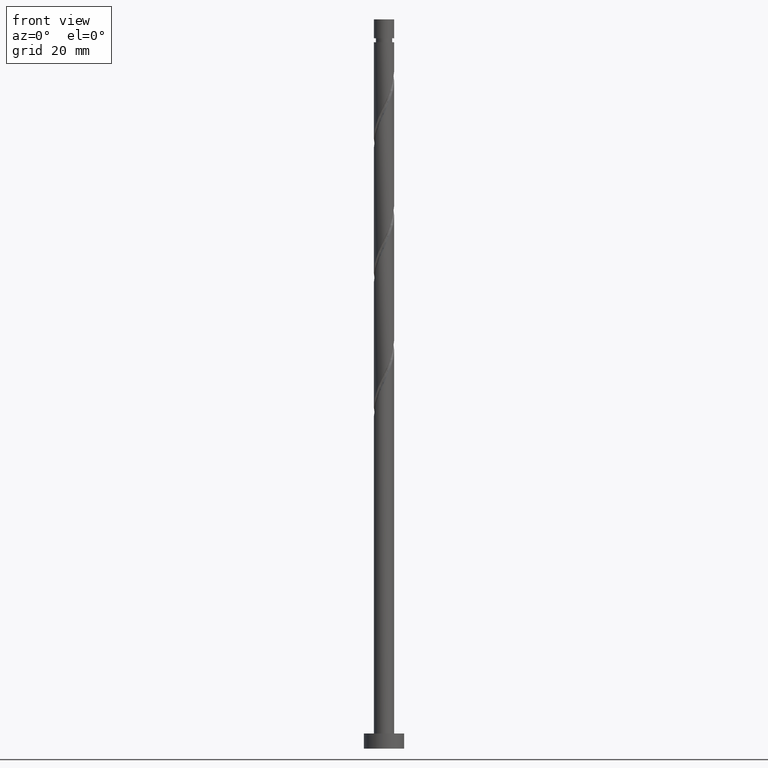
[diagram: clean part render]
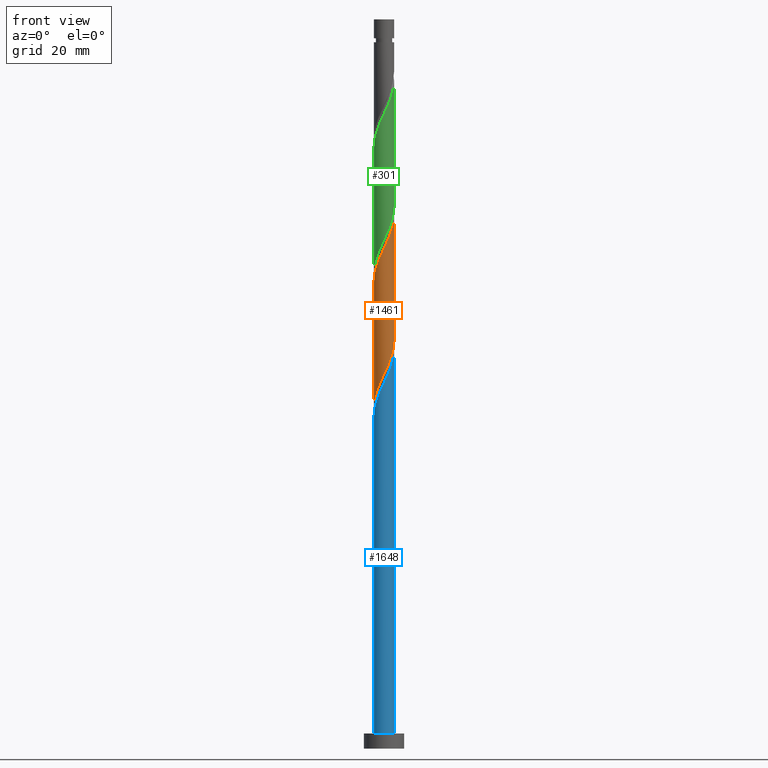
[diagram: same view with three faces highlighted in distinct colors, each labeled with its STEP entity id]
A machine part, front view with three faces highlighted in distinct colors.
Their STEP definitions:

[orange] entity #1461 — the highlighted cylindrical surface (edge-blend (fillet) strip) has radius 2 mm, axis along (-0, -0, -1).
#5 = CARTESIAN_POINT ( 'NONE',  ( 1.786663747202081876, -0.9436744384215538517, 78.85604992520248402 ) ) ;
#36 = CARTESIAN_POINT ( 'NONE',  ( 0.4568343776401056489, -1.968245701812300963, 75.21968628883884378 ) ) ;
#58 = CARTESIAN_POINT ( 'NONE',  ( 1.600603406160407083, -1.233189980288575294, 103.0984741676267475 ) ) ;
#102 = CARTESIAN_POINT ( 'NONE',  ( -1.999999999999999112, 2.146303770951738101E-15, 67.58429228329124783 ) ) ;
#144 = CARTESIAN_POINT ( 'NONE',  ( -1.394470680848406641, -1.433684595806965056, 70.97726204641459447 ) ) ;
#175 = CARTESIAN_POINT ( 'NONE',  ( 1.996690616564938958, -0.1150068768444775791, 80.67423174338432545 ) ) ;
#267 = CARTESIAN_POINT ( 'NONE',  ( 1.220637884402353324, -1.584311571365224047, 77.03786810702067100 ) ) ;
#276 = CARTESIAN_POINT ( 'NONE',  ( -1.999999999999999112, 2.146303770951738496E-15, 67.58429228329124783 ) ) ;
#285 = CARTESIAN_POINT ( 'NONE',  ( 0.9928482695149667414, -1.759812803970228101, 76.43180750096007614 ) ) ;
#306 = CARTESIAN_POINT ( 'NONE',  ( -0.1161895186125012913, -2.017223038501447796, 74.00756507671765405 ) ) ;
#310 = CARTESIAN_POINT ( 'NONE',  ( -2.000000000000002665, -0.05755105304765272684, 92.67414799607438169 ) ) ;
#395 = CARTESIAN_POINT ( 'NONE',  ( -1.600603406160405084, -1.233189980288572185, 70.37120144035398539 ) ) ;
#400 = CARTESIAN_POINT ( 'NONE',  ( -0.7248413235775378327, -1.864029252891267197, 97.64392871308126587 ) ) ;
#410 = CARTESIAN_POINT ( 'NONE',  ( -1.188337955536407309, -1.634179211325358372, 71.58332265247526038 ) ) ;
#439 = EDGE_CURVE ( 'NONE', #1154, #592, #658, .T. ) ;
#443 = CARTESIAN_POINT ( 'NONE',  ( 2.000000000000006661, -0.2290578547702314116, 105.3994233717182283 ) ) ;
#457 = DIRECTION ( 'NONE',  ( -0.000000000000000000, -0.000000000000000000, -1.000000000000000000 ) ) ;
#483 =( BOUNDED_CURVE ( )  B_SPLINE_CURVE ( 2, ( #549, #310, #563, #777, #808, #797, #531, #1301, #1058, #1320, #400, #666, #1187, #1562, #1605, #1616, #981, #570, #692, #58, #1084, #1469, #1600, #443, #852 ),
 .UNSPECIFIED., .F., .T. ) 
 B_SPLINE_CURVE_WITH_KNOTS ( ( 3, 2, 2, 2, 2, 2, 2, 2, 2, 2, 2, 2, 3 ),
 ( 0.3045252162417516062, 0.3068181818181817677, 0.3181818181818182323, 0.3295454545454545858, 0.3409090909090909394, 0.3522727272727272929, 0.3636363636363636465, 0.3750000000000000000, 0.3863636363636363535, 0.3977272727272727071, 0.4090909090909090606, 0.4204545454545454142, 0.4295252162417518838 ),
 .UNSPECIFIED. ) 
 CURVE ( )  GEOMETRIC_REPRESENTATION_ITEM ( )  RATIONAL_B_SPLINE_CURVE ( ( 0.9061101570135665639, 0.9072237824201486722, 0.9090909090909258250, 0.8998376744372282854, 0.9090909090909258250, 0.8998376744372282854, 0.9090909090909258250, 0.8998376744372282854, 0.9090909090909258250, 0.8998376744372282854, 0.9090909090909258250, 0.8998376744372282854, 0.9090909090909258250, 0.8998376744372282854, 0.9090909090909258250, 0.8998376744372282854, 0.9090909090909258250, 0.8998376744372282854, 0.9090909090909258250, 0.8998376744372282854, 0.9090909090909258250, 0.8998376744372282854, 0.9090909090909258250, 0.9017048011080052161, 0.9061101570135667860 ) ) 
 REPRESENTATION_ITEM ( '' )  );
#526 = CARTESIAN_POINT ( 'NONE',  ( 0.7248413235775359453, -1.864029252891264754, 75.82574689489945285 ) ) ;
#531 = CARTESIAN_POINT ( 'NONE',  ( -1.617545623245914665, -1.176242388590888366, 95.21968628883884378 ) ) ;
#537 = CARTESIAN_POINT ( 'NONE',  ( 1.448427499289741682, -1.408810338760219771, 77.64392871308128008 ) ) ;
#547 = VECTOR ( 'NONE', #457, 1000.000000000000000 ) ;
#549 = CARTESIAN_POINT ( 'NONE',  ( -2.000000000000003553, -1.570466173867113261E-15, 92.55204999135617072 ) ) ;
#556 = CARTESIAN_POINT ( 'NONE',  ( -0.9340691933046016970, -1.768478086411954475, 72.18938325853581262 ) ) ;
#563 = CARTESIAN_POINT ( 'NONE',  ( -1.996690616564942955, -0.1150068768444769268, 92.79544386459643590 ) ) ;
#570 = CARTESIAN_POINT ( 'NONE',  ( 1.188337955536409751, -1.634179211325361258, 101.8863529555055294 ) ) ;
#592 = VERTEX_POINT ( 'NONE', #1145 ) ;
#627 = CYLINDRICAL_SURFACE ( 'NONE', #1660, 2.000000000000000000 ) ;
#652 = DIRECTION ( 'NONE',  ( -1.000000000000000000, 0.000000000000000000, 0.000000000000000000 ) ) ;
#658 = LINE ( 'NONE', #1176, #1160 ) ;
#666 = CARTESIAN_POINT ( 'NONE',  ( -0.4568343776401063705, -1.968245701812304516, 98.24998931914188915 ) ) ;
#670 = CARTESIAN_POINT ( 'NONE',  ( 1.999999999999999556, 3.036234602809776601E-15, 80.91762561662460485 ) ) ;
#692 = CARTESIAN_POINT ( 'NONE',  ( 1.394470680848408417, -1.433684595806968387, 102.4924135615661385 ) ) ;
#751 = FACE_OUTER_BOUND ( 'NONE', #1618, .T. ) ;
#767 = EDGE_CURVE ( 'NONE', #994, #953, #1104, .T. ) ;
#777 = CARTESIAN_POINT ( 'NONE',  ( -1.980155124014553847, -0.4020876473299556109, 93.40150447065703077 ) ) ;
#784 = CARTESIAN_POINT ( 'NONE',  ( 1.617545623245911335, -1.176242388590886589, 78.24998931914186073 ) ) ;
#797 = CARTESIAN_POINT ( 'NONE',  ( -1.786663747202084984, -0.9436744384215550729, 94.61362568277823470 ) ) ;
#808 = CARTESIAN_POINT ( 'NONE',  ( -1.883409435608319527, -0.6728810428757550088, 94.00756507671763984 ) ) ;
#814 = DIRECTION ( 'NONE',  ( -0.000000000000000000, -0.000000000000000000, -1.000000000000000000 ) ) ;
#852 = CARTESIAN_POINT ( 'NONE',  ( 2.000000000000003553, 1.450811608239142856E-15, 105.8853833246894993 ) ) ;
#920 = CARTESIAN_POINT ( 'NONE',  ( -1.883197487972271933, -0.7322950311120137723, 69.15908022823278145 ) ) ;
#939 = CARTESIAN_POINT ( 'NONE',  ( 0.1703224295138016653, -1.992734370156873824, 74.61362568277824892 ) ) ;
#953 = VERTEX_POINT ( 'NONE', #102 ) ;
#974 = ORIENTED_EDGE ( 'NONE', *, *, #767, .T. ) ;
#981 = CARTESIAN_POINT ( 'NONE',  ( 0.9340691933046026962, -1.768478086411958028, 101.2802923494449203 ) ) ;
#994 = VERTEX_POINT ( 'NONE', #1174 ) ;
#1045 = CARTESIAN_POINT ( 'NONE',  ( -0.3979949748426486189, -1.959999999999999520, 73.40150447065701655 ) ) ;
#1055 = CARTESIAN_POINT ( 'NONE',  ( -1.948211798543799889, -0.4521844623765072790, 68.55301962217218659 ) ) ;
#1058 = CARTESIAN_POINT ( 'NONE',  ( -1.220637884402356210, -1.584311571365226046, 96.43180750096009035 ) ) ;
#1060 = DIRECTION ( 'NONE',  ( -0.000000000000000000, -0.000000000000000000, -1.000000000000000000 ) ) ;
#1083 = EDGE_CURVE ( 'NONE', #994, #1154, #483, .T. ) ;
#1084 = CARTESIAN_POINT ( 'NONE',  ( 1.741900447066340618, -0.9827425057002954212, 103.7045347736873424 ) ) ;
#1104 = LINE ( 'NONE', #1612, #547 ) ;
#1145 = CARTESIAN_POINT ( 'NONE',  ( 1.999999999999999556, 3.036234602809776206E-15, 80.91762561662460485 ) ) ;
#1154 = VERTEX_POINT ( 'NONE', #1623 ) ;
#1160 = VECTOR ( 'NONE', #1060, 1000.000000000000000 ) ;
#1169 = CARTESIAN_POINT ( 'NONE',  ( 1.883409435608315752, -0.6728810428757546758, 79.46211053126310730 ) ) ;
#1174 = CARTESIAN_POINT ( 'NONE',  ( -2.000000000000003553, -1.570466173867113261E-15, 92.55204999135617072 ) ) ;
#1176 = CARTESIAN_POINT ( 'NONE',  ( 2.000000000000000000, 2.449293598294706414E-16, 144.5999999999999943 ) ) ;
#1183 =( BOUNDED_CURVE ( )  B_SPLINE_CURVE ( 2, ( #670, #1201, #175, #1424, #1169, #5, #784, #537, #267, #285, #526, #36, #939, #306, #1045, #1549, #556, #410, #144, #395, #1191, #920, #1055, #1434, #276 ),
 .UNSPECIFIED., .F., .T. ) 
 B_SPLINE_CURVE_WITH_KNOTS ( ( 3, 2, 2, 2, 2, 2, 2, 2, 2, 2, 2, 2, 3 ),
 ( 0.8045252162417509956, 0.8068181818181817677, 0.8181818181818182323, 0.8295454545454545858, 0.8409090909090909394, 0.8522727272727272929, 0.8636363636363636465, 0.8750000000000000000, 0.8863636363636363535, 0.8977272727272727071, 0.9090909090909090606, 0.9204545454545454142, 0.9295252162417514397 ),
 .UNSPECIFIED. ) 
 CURVE ( )  GEOMETRIC_REPRESENTATION_ITEM ( )  RATIONAL_B_SPLINE_CURVE ( ( 0.9061101570135590144, 0.9072237824201411227, 0.9090909090909189416, 0.8998376744372211800, 0.9090909090909189416, 0.8998376744372211800, 0.9090909090909189416, 0.8998376744372211800, 0.9090909090909189416, 0.8998376744372211800, 0.9090909090909189416, 0.8998376744372211800, 0.9090909090909189416, 0.8998376744372211800, 0.9090909090909189416, 0.8998376744372211800, 0.9090909090909189416, 0.8998376744372211800, 0.9090909090909189416, 0.8998376744372211800, 0.9090909090909189416, 0.8998376744372211800, 0.9090909090909189416, 0.9017048011079985548, 0.9061101570135594585 ) ) 
 REPRESENTATION_ITEM ( '' )  );
#1187 = CARTESIAN_POINT ( 'NONE',  ( -0.1703224295138029143, -1.992734370156877821, 98.85604992520249823 ) ) ;
#1191 = CARTESIAN_POINT ( 'NONE',  ( -1.741900447066337954, -0.9827425057002928677, 69.76514083429339053 ) ) ;
#1201 = CARTESIAN_POINT ( 'NONE',  ( 2.000000000000000000, -0.05755105304763822455, 80.79552761190637966 ) ) ;
#1285 = ORIENTED_EDGE ( 'NONE', *, *, #1083, .F. ) ;
#1301 = CARTESIAN_POINT ( 'NONE',  ( -1.448427499289743903, -1.408810338760221548, 95.82574689489946707 ) ) ;
#1320 = CARTESIAN_POINT ( 'NONE',  ( -0.9928482695149690729, -1.759812803970230322, 97.03786810702067100 ) ) ;
#1352 = ORIENTED_EDGE ( 'NONE', *, *, #1481, .F. ) ;
#1395 = CARTESIAN_POINT ( 'NONE',  ( 0.000000000000000000, 0.000000000000000000, 144.5999999999999943 ) ) ;
#1424 = CARTESIAN_POINT ( 'NONE',  ( 1.980155124014550738, -0.4020876473299556664, 80.06817113732370217 ) ) ;
#1434 = CARTESIAN_POINT ( 'NONE',  ( -2.000000000000000444, -0.2290578547702416257, 68.07025223626254729 ) ) ;
#1461 = ADVANCED_FACE ( 'NONE', ( #751 ), #627, .T. ) ;
#1469 = CARTESIAN_POINT ( 'NONE',  ( 1.883197487972274820, -0.7322950311120147715, 104.3105953797479373 ) ) ;
#1479 = ORIENTED_EDGE ( 'NONE', *, *, #439, .F. ) ;
#1481 = EDGE_CURVE ( 'NONE', #592, #953, #1183, .T. ) ;
#1549 = CARTESIAN_POINT ( 'NONE',  ( -0.6798004310727961963, -1.902776961498551245, 72.79544386459642169 ) ) ;
#1562 = CARTESIAN_POINT ( 'NONE',  ( 0.1161895186125005835, -2.017223038501450905, 99.46211053126307888 ) ) ;
#1600 = CARTESIAN_POINT ( 'NONE',  ( 1.948211798543803663, -0.4521844623765085558, 104.9166559858085890 ) ) ;
#1605 = CARTESIAN_POINT ( 'NONE',  ( 0.3979949748426485634, -1.960000000000003073, 100.0681711373236880 ) ) ;
#1612 = CARTESIAN_POINT ( 'NONE',  ( -2.000000000000000000, 0.000000000000000000, 144.5999999999999943 ) ) ;
#1616 = CARTESIAN_POINT ( 'NONE',  ( 0.6798004310727965294, -1.902776961498555242, 100.6742317433843112 ) ) ;
#1618 = EDGE_LOOP ( 'NONE', ( #1479, #1285, #974, #1352 ) ) ;
#1623 = CARTESIAN_POINT ( 'NONE',  ( 2.000000000000003553, 1.450811608239142856E-15, 105.8853833246894993 ) ) ;
#1660 = AXIS2_PLACEMENT_3D ( 'NONE', #1395, #814, #652 ) ;

[blue] entity #1648 — the highlighted cylindrical surface (edge-blend (fillet) strip) has radius 2 mm, axis along (-0, -0, -1).
#12 = DIRECTION ( 'NONE',  ( -0.000000000000000000, -0.000000000000000000, -1.000000000000000000 ) ) ;
#45 = CARTESIAN_POINT ( 'NONE',  ( -1.980155124014553847, -0.4020876473299556109, 66.73483780399034515 ) ) ;
#62 = ORIENTED_EDGE ( 'NONE', *, *, #882, .T. ) ;
#63 = CARTESIAN_POINT ( 'NONE',  ( -0.1703224295138029143, -1.992734370156877821, 72.18938325853582683 ) ) ;
#86 = DIRECTION ( 'NONE',  ( -1.000000000000000000, 0.000000000000000000, 0.000000000000000000 ) ) ;
#208 = VERTEX_POINT ( 'NONE', #605 ) ;
#212 = CARTESIAN_POINT ( 'NONE',  ( -2.000000000000003553, -1.570466173867113261E-15, 65.88538332468947090 ) ) ;
#245 = CARTESIAN_POINT ( 'NONE',  ( -2.000000000000003109, -0.05755105304764770308, 66.00748132940768187 ) ) ;
#250 = CARTESIAN_POINT ( 'NONE',  ( 2.000000000000003553, 1.450811608239142856E-15, 79.21871665802281370 ) ) ;
#254 = CIRCLE ( 'NONE', #1371, 2.000000000000000000 ) ;
#292 = LINE ( 'NONE', #1178, #783 ) ;
#322 = CARTESIAN_POINT ( 'NONE',  ( 1.188337955536409751, -1.634179211325361258, 75.21968628883884378 ) ) ;
#335 = DIRECTION ( 'NONE',  ( 1.000000000000000000, 0.000000000000000000, 0.000000000000000000 ) ) ;
#367 = VERTEX_POINT ( 'NONE', #250 ) ;
#420 = CARTESIAN_POINT ( 'NONE',  ( -0.4568343776401063705, -1.968245701812304516, 71.58332265247520354 ) ) ;
#435 = CARTESIAN_POINT ( 'NONE',  ( -1.220637884402356210, -1.584311571365226046, 69.76514083429341895 ) ) ;
#438 = CARTESIAN_POINT ( 'NONE',  ( -0.7248413235775378327, -1.864029252891267197, 70.97726204641459447 ) ) ;
#462 = ORIENTED_EDGE ( 'NONE', *, *, #916, .F. ) ;
#555 = CARTESIAN_POINT ( 'NONE',  ( 1.394470680848408417, -1.433684595806968387, 75.82574689489946707 ) ) ;
#564 = CARTESIAN_POINT ( 'NONE',  ( -1.883409435608319527, -0.6728810428757550088, 67.34089841005098265 ) ) ;
#605 = CARTESIAN_POINT ( 'NONE',  ( 2.000000000000000000, 2.449293598294706414E-16, 3.000000000000000000 ) ) ;
#610 = CARTESIAN_POINT ( 'NONE',  ( -1.786663747202084984, -0.9436744384215550729, 67.94695901611157751 ) ) ;
#707 = VERTEX_POINT ( 'NONE', #1269 ) ;
#735 = CARTESIAN_POINT ( 'NONE',  ( -1.996690616564942955, -0.1150068768444769268, 66.12877719792975029 ) ) ;
#736 = EDGE_LOOP ( 'NONE', ( #861, #462, #1240, #62 ) ) ;
#783 = VECTOR ( 'NONE', #12, 1000.000000000000000 ) ;
#818 = EDGE_CURVE ( 'NONE', #707, #869, #1362, .T. ) ;
#824 = CARTESIAN_POINT ( 'NONE',  ( -1.448427499289743903, -1.408810338760221548, 69.15908022823279566 ) ) ;
#838 = CARTESIAN_POINT ( 'NONE',  ( 1.741900447066340618, -0.9827425057002954212, 77.03786810702069943 ) ) ;
#848 = CARTESIAN_POINT ( 'NONE',  ( 2.000000000000003997, -0.2290578547702424583, 78.73275670505147161 ) ) ;
#861 = ORIENTED_EDGE ( 'NONE', *, *, #1195, .F. ) ;
#869 = VERTEX_POINT ( 'NONE', #1234 ) ;
#882 = EDGE_CURVE ( 'NONE', #869, #208, #254, .T. ) ;
#916 = EDGE_CURVE ( 'NONE', #707, #367, #1511, .T. ) ;
#958 = CARTESIAN_POINT ( 'NONE',  ( -0.9928482695149690729, -1.759812803970230322, 70.37120144035398539 ) ) ;
#979 = CYLINDRICAL_SURFACE ( 'NONE', #1662, 2.000000000000000000 ) ;
#1088 = FACE_OUTER_BOUND ( 'NONE', #736, .T. ) ;
#1093 = CARTESIAN_POINT ( 'NONE',  ( 0.3979949748426485634, -1.960000000000003073, 73.40150447065705919 ) ) ;
#1178 = CARTESIAN_POINT ( 'NONE',  ( 2.000000000000000000, 2.449293598294706414E-16, 144.5999999999999943 ) ) ;
#1195 = EDGE_CURVE ( 'NONE', #367, #208, #292, .T. ) ;
#1219 = CARTESIAN_POINT ( 'NONE',  ( 0.9340691933046026962, -1.768478086411958028, 74.61362568277824892 ) ) ;
#1234 = CARTESIAN_POINT ( 'NONE',  ( -2.000000000000000000, 0.000000000000000000, 3.000000000000000000 ) ) ;
#1238 = CARTESIAN_POINT ( 'NONE',  ( 0.000000000000000000, 0.000000000000000000, 3.000000000000000000 ) ) ;
#1240 = ORIENTED_EDGE ( 'NONE', *, *, #818, .T. ) ;
#1246 = DIRECTION ( 'NONE',  ( -0.000000000000000000, -0.000000000000000000, -1.000000000000000000 ) ) ;
#1269 = CARTESIAN_POINT ( 'NONE',  ( -2.000000000000003553, -1.570466173867113261E-15, 65.88538332468947090 ) ) ;
#1339 = CARTESIAN_POINT ( 'NONE',  ( 0.1161895186125005835, -2.017223038501450905, 72.79544386459640748 ) ) ;
#1355 = CARTESIAN_POINT ( 'NONE',  ( 0.000000000000000000, 0.000000000000000000, 144.5999999999999943 ) ) ;
#1362 = LINE ( 'NONE', #1541, #1456 ) ;
#1371 = AXIS2_PLACEMENT_3D ( 'NONE', #1238, #1390, #335 ) ;
#1390 = DIRECTION ( 'NONE',  ( 0.000000000000000000, 0.000000000000000000, 1.000000000000000000 ) ) ;
#1396 = DIRECTION ( 'NONE',  ( -0.000000000000000000, -0.000000000000000000, -1.000000000000000000 ) ) ;
#1456 = VECTOR ( 'NONE', #1396, 1000.000000000000000 ) ;
#1466 = CARTESIAN_POINT ( 'NONE',  ( 0.6798004310727965294, -1.902776961498555242, 74.00756507671762563 ) ) ;
#1487 = CARTESIAN_POINT ( 'NONE',  ( 1.948211798543803663, -0.4521844623765085558, 78.24998931914188915 ) ) ;
#1498 = CARTESIAN_POINT ( 'NONE',  ( 1.600603406160407083, -1.233189980288575294, 76.43180750096006193 ) ) ;
#1511 =( BOUNDED_CURVE ( )  B_SPLINE_CURVE ( 2, ( #212, #245, #735, #45, #564, #610, #1588, #824, #435, #958, #438, #420, #63, #1339, #1093, #1466, #1219, #322, #555, #1498, #838, #1610, #1487, #848, #1663 ),
 .UNSPECIFIED., .F., .T. ) 
 B_SPLINE_CURVE_WITH_KNOTS ( ( 3, 2, 2, 2, 2, 2, 2, 2, 2, 2, 2, 2, 3 ),
 ( 0.05452521624175140497, 0.05681818181818176772, 0.06818181818181823228, 0.07954545454545458583, 0.09090909090909093937, 0.1022727272727272929, 0.1136363636363636465, 0.1250000000000000000, 0.1363636363636363535, 0.1477272727272727071, 0.1590909090909090606, 0.1704545454545454142, 0.1795252162417514397 ),
 .UNSPECIFIED. ) 
 CURVE ( )  GEOMETRIC_REPRESENTATION_ITEM ( )  RATIONAL_B_SPLINE_CURVE ( ( 0.9061101570135663419, 0.9072237824201484502, 0.9090909090909258250, 0.8998376744372282854, 0.9090909090909258250, 0.8998376744372282854, 0.9090909090909258250, 0.8998376744372282854, 0.9090909090909258250, 0.8998376744372282854, 0.9090909090909258250, 0.8998376744372282854, 0.9090909090909258250, 0.8998376744372282854, 0.9090909090909258250, 0.8998376744372282854, 0.9090909090909258250, 0.8998376744372282854, 0.9090909090909258250, 0.8998376744372282854, 0.9090909090909258250, 0.8998376744372282854, 0.9090909090909258250, 0.9017048011080055492, 0.9061101570135663419 ) ) 
 REPRESENTATION_ITEM ( '' )  );
#1541 = CARTESIAN_POINT ( 'NONE',  ( -2.000000000000000000, 0.000000000000000000, 144.5999999999999943 ) ) ;
#1588 = CARTESIAN_POINT ( 'NONE',  ( -1.617545623245914665, -1.176242388590888366, 68.55301962217218659 ) ) ;
#1610 = CARTESIAN_POINT ( 'NONE',  ( 1.883197487972274820, -0.7322950311120147715, 77.64392871308126587 ) ) ;
#1648 = ADVANCED_FACE ( 'NONE', ( #1088 ), #979, .T. ) ;
#1662 = AXIS2_PLACEMENT_3D ( 'NONE', #1355, #1246, #86 ) ;
#1663 = CARTESIAN_POINT ( 'NONE',  ( 2.000000000000003553, 1.450811608239142856E-15, 79.21871665802281370 ) ) ;

[green] entity #301 — the highlighted cylindrical surface (edge-blend (fillet) strip) has radius 2 mm, axis along (-0, -0, -1).
#4 = CARTESIAN_POINT ( 'NONE',  ( 0.1161895186125005835, -2.017223038501450905, 126.1287771979297787 ) ) ;
#13 = CARTESIAN_POINT ( 'NONE',  ( 2.000000000000003109, -0.2290578547702473711, 132.0660900383848286 ) ) ;
#60 = CARTESIAN_POINT ( 'NONE',  ( 1.617545623245911335, -1.176242388590886589, 104.9166559858085321 ) ) ;
#68 = ORIENTED_EDGE ( 'NONE', *, *, #1186, .T. ) ;
#98 = CARTESIAN_POINT ( 'NONE',  ( -0.9340691933046016970, -1.768478086411954475, 98.85604992520249823 ) ) ;
#132 =( BOUNDED_CURVE ( )  B_SPLINE_CURVE ( 2, ( #587, #1462, #315, #1085, #440, #828, #60, #1137, #1004, #337, #601, #747, #1531, #1642, #1268, #1502, #98, #622, #345, #886, #495, #1017, #866, #1374, #227 ),
 .UNSPECIFIED., .F., .T. ) 
 B_SPLINE_CURVE_WITH_KNOTS ( ( 3, 2, 2, 2, 2, 2, 2, 2, 2, 2, 2, 2, 3 ),
 ( 0.5545252162417511066, 0.5568181818181817677, 0.5681818181818182323, 0.5795454545454545858, 0.5909090909090909394, 0.6022727272727272929, 0.6136363636363636465, 0.6250000000000000000, 0.6363636363636363535, 0.6477272727272727071, 0.6590909090909090606, 0.6704545454545454142, 0.6795252162417514397 ),
 .UNSPECIFIED. ) 
 CURVE ( )  GEOMETRIC_REPRESENTATION_ITEM ( )  RATIONAL_B_SPLINE_CURVE ( ( 0.9061101570135590144, 0.9072237824201412337, 0.9090909090909189416, 0.8998376744372211800, 0.9090909090909189416, 0.8998376744372211800, 0.9090909090909189416, 0.8998376744372211800, 0.9090909090909189416, 0.8998376744372211800, 0.9090909090909189416, 0.8998376744372211800, 0.9090909090909189416, 0.8998376744372211800, 0.9090909090909189416, 0.8998376744372211800, 0.9090909090909189416, 0.8998376744372211800, 0.9090909090909189416, 0.8998376744372211800, 0.9090909090909189416, 0.8998376744372211800, 0.9090909090909189416, 0.9017048011079985548, 0.9061101570135594585 ) ) 
 REPRESENTATION_ITEM ( '' )  );
#134 = CARTESIAN_POINT ( 'NONE',  ( -0.4568343776401063705, -1.968245701812304516, 124.9166559858085748 ) ) ;
#163 = CARTESIAN_POINT ( 'NONE',  ( 0.9340691933046026962, -1.768478086411958028, 127.9469590161116059 ) ) ;
#173 = DIRECTION ( 'NONE',  ( -0.000000000000000000, -0.000000000000000000, -1.000000000000000000 ) ) ;
#205 = CARTESIAN_POINT ( 'NONE',  ( -2.000000000000003553, 1.226459297686698274E-15, 119.2187166580228279 ) ) ;
#219 = LINE ( 'NONE', #626, #899 ) ;
#227 = CARTESIAN_POINT ( 'NONE',  ( -1.999999999999999112, 2.146303770951738496E-15, 94.25095894995790502 ) ) ;
#258 = CARTESIAN_POINT ( 'NONE',  ( -1.883409435608319527, -0.6728810428757550088, 120.6742317433843112 ) ) ;
#284 = CARTESIAN_POINT ( 'NONE',  ( -1.448427499289743903, -1.408810338760221548, 122.4924135615661243 ) ) ;
#293 = CARTESIAN_POINT ( 'NONE',  ( 0.6798004310727965294, -1.902776961498555242, 127.3408984100509684 ) ) ;
#301 = ADVANCED_FACE ( 'NONE', ( #1533 ), #1130, .T. ) ;
#315 = CARTESIAN_POINT ( 'NONE',  ( 1.996690616564938958, -0.1150068768444775791, 107.3408984100509826 ) ) ;
#337 = CARTESIAN_POINT ( 'NONE',  ( 0.9928482695149667414, -1.759812803970228101, 103.0984741676267049 ) ) ;
#339 = EDGE_LOOP ( 'NONE', ( #964, #454, #68, #1121 ) ) ;
#345 = CARTESIAN_POINT ( 'NONE',  ( -1.394470680848406641, -1.433684595806965056, 97.64392871308128008 ) ) ;
#359 = DIRECTION ( 'NONE',  ( -0.000000000000000000, -0.000000000000000000, -1.000000000000000000 ) ) ;
#378 = CARTESIAN_POINT ( 'NONE',  ( -1.786663747202084984, -0.9436744384215550729, 121.2802923494449203 ) ) ;
#440 = CARTESIAN_POINT ( 'NONE',  ( 1.883409435608315752, -0.6728810428757546758, 106.1287771979297503 ) ) ;
#454 = ORIENTED_EDGE ( 'NONE', *, *, #611, .F. ) ;
#495 = CARTESIAN_POINT ( 'NONE',  ( -1.741900447066337954, -0.9827425057002928677, 96.43180750096003351 ) ) ;
#508 = EDGE_CURVE ( 'NONE', #1129, #1372, #132, .T. ) ;
#525 = CARTESIAN_POINT ( 'NONE',  ( 1.188337955536409751, -1.634179211325361258, 128.5530196221722008 ) ) ;
#536 = CARTESIAN_POINT ( 'NONE',  ( 2.000000000000003553, 1.450811608239142856E-15, 132.5520499913561707 ) ) ;
#554 = CARTESIAN_POINT ( 'NONE',  ( 0.3979949748426485634, -1.960000000000003073, 126.7348378039903594 ) ) ;
#587 = CARTESIAN_POINT ( 'NONE',  ( 1.999999999999999556, 3.036234602809776601E-15, 107.5842922832912905 ) ) ;
#601 = CARTESIAN_POINT ( 'NONE',  ( 0.7248413235775359453, -1.864029252891264754, 102.4924135615661243 ) ) ;
#611 = EDGE_CURVE ( 'NONE', #1523, #1243, #1630, .T. ) ;
#622 = CARTESIAN_POINT ( 'NONE',  ( -1.188337955536407309, -1.634179211325358372, 98.24998931914188915 ) ) ;
#623 = VECTOR ( 'NONE', #173, 1000.000000000000000 ) ;
#626 = CARTESIAN_POINT ( 'NONE',  ( 2.000000000000000000, 2.449293598294706414E-16, 144.5999999999999943 ) ) ;
#747 = CARTESIAN_POINT ( 'NONE',  ( 0.4568343776401056489, -1.968245701812300963, 101.8863529555055152 ) ) ;
#766 = CARTESIAN_POINT ( 'NONE',  ( -1.617545623245914665, -1.176242388590888366, 121.8863529555055436 ) ) ;
#769 = CARTESIAN_POINT ( 'NONE',  ( 0.000000000000000000, 0.000000000000000000, 144.5999999999999943 ) ) ;
#780 = LINE ( 'NONE', #1190, #623 ) ;
#802 = CARTESIAN_POINT ( 'NONE',  ( 1.600603406160407083, -1.233189980288575294, 129.7651408342933905 ) ) ;
#828 = CARTESIAN_POINT ( 'NONE',  ( 1.786663747202081876, -0.9436744384215538517, 105.5227165918691696 ) ) ;
#862 = CARTESIAN_POINT ( 'NONE',  ( 1.999999999999999556, 3.036234602809776206E-15, 107.5842922832912905 ) ) ;
#866 = CARTESIAN_POINT ( 'NONE',  ( -1.948211798543799889, -0.4521844623765072790, 95.21968628883887220 ) ) ;
#872 = CARTESIAN_POINT ( 'NONE',  ( -1.999999999999999112, 2.146303770951738101E-15, 94.25095894995790502 ) ) ;
#886 = CARTESIAN_POINT ( 'NONE',  ( -1.600603406160405084, -1.233189980288572185, 97.03786810702068522 ) ) ;
#898 = CARTESIAN_POINT ( 'NONE',  ( -2.000000000000003553, -0.05755105304764356056, 119.3408146627410531 ) ) ;
#899 = VECTOR ( 'NONE', #1111, 1000.000000000000000 ) ;
#919 = CARTESIAN_POINT ( 'NONE',  ( 1.883197487972274820, -0.7322950311120147715, 130.9772620464146087 ) ) ;
#924 = EDGE_CURVE ( 'NONE', #1243, #1129, #219, .T. ) ;
#937 = CARTESIAN_POINT ( 'NONE',  ( -0.7248413235775378327, -1.864029252891267197, 124.3105953797479657 ) ) ;
#964 = ORIENTED_EDGE ( 'NONE', *, *, #924, .F. ) ;
#1004 = CARTESIAN_POINT ( 'NONE',  ( 1.220637884402353324, -1.584311571365224047, 103.7045347736873424 ) ) ;
#1017 = CARTESIAN_POINT ( 'NONE',  ( -1.883197487972271933, -0.7322950311120137723, 95.82574689489946707 ) ) ;
#1044 = CARTESIAN_POINT ( 'NONE',  ( 1.394470680848408417, -1.433684595806968387, 129.1590802282327957 ) ) ;
#1085 = CARTESIAN_POINT ( 'NONE',  ( 1.980155124014550738, -0.4020876473299556664, 106.7348378039903878 ) ) ;
#1111 = DIRECTION ( 'NONE',  ( -0.000000000000000000, -0.000000000000000000, -1.000000000000000000 ) ) ;
#1121 = ORIENTED_EDGE ( 'NONE', *, *, #508, .F. ) ;
#1129 = VERTEX_POINT ( 'NONE', #862 ) ;
#1130 = CYLINDRICAL_SURFACE ( 'NONE', #1220, 2.000000000000000000 ) ;
#1137 = CARTESIAN_POINT ( 'NONE',  ( 1.448427499289741682, -1.408810338760219771, 104.3105953797479231 ) ) ;
#1166 = CARTESIAN_POINT ( 'NONE',  ( -0.1703224295138029143, -1.992734370156877821, 125.5227165918691128 ) ) ;
#1179 = CARTESIAN_POINT ( 'NONE',  ( 1.948211798543803663, -0.4521844623765085558, 131.5833226524752035 ) ) ;
#1186 = EDGE_CURVE ( 'NONE', #1523, #1372, #780, .T. ) ;
#1190 = CARTESIAN_POINT ( 'NONE',  ( -2.000000000000000000, 0.000000000000000000, 144.5999999999999943 ) ) ;
#1220 = AXIS2_PLACEMENT_3D ( 'NONE', #769, #359, #1288 ) ;
#1243 = VERTEX_POINT ( 'NONE', #1406 ) ;
#1268 = CARTESIAN_POINT ( 'NONE',  ( -0.3979949748426486189, -1.959999999999999520, 100.0681711373236595 ) ) ;
#1286 = CARTESIAN_POINT ( 'NONE',  ( -1.980155124014553847, -0.4020876473299556109, 120.0681711373237022 ) ) ;
#1288 = DIRECTION ( 'NONE',  ( -1.000000000000000000, 0.000000000000000000, 0.000000000000000000 ) ) ;
#1372 = VERTEX_POINT ( 'NONE', #872 ) ;
#1374 = CARTESIAN_POINT ( 'NONE',  ( -2.000000000000000444, -0.2290578547702416257, 94.73691890292921869 ) ) ;
#1402 = CARTESIAN_POINT ( 'NONE',  ( -1.996690616564942955, -0.1150068768444769268, 119.4621105312631073 ) ) ;
#1406 = CARTESIAN_POINT ( 'NONE',  ( 2.000000000000003553, 1.450811608239142856E-15, 132.5520499913561707 ) ) ;
#1415 = CARTESIAN_POINT ( 'NONE',  ( -0.9928482695149690729, -1.759812803970230322, 123.7045347736873424 ) ) ;
#1423 = CARTESIAN_POINT ( 'NONE',  ( 1.741900447066340618, -0.9827425057002954212, 130.3712014403539854 ) ) ;
#1462 = CARTESIAN_POINT ( 'NONE',  ( 2.000000000000000000, -0.05755105304764102092, 107.4621942785730653 ) ) ;
#1502 = CARTESIAN_POINT ( 'NONE',  ( -0.6798004310727961963, -1.902776961498551245, 99.46211053126309309 ) ) ;
#1523 = VERTEX_POINT ( 'NONE', #1577 ) ;
#1531 = CARTESIAN_POINT ( 'NONE',  ( 0.1703224295138016653, -1.992734370156873824, 101.2802923494448777 ) ) ;
#1533 = FACE_OUTER_BOUND ( 'NONE', #339, .T. ) ;
#1567 = CARTESIAN_POINT ( 'NONE',  ( -1.220637884402356210, -1.584311571365226046, 123.0984741676267333 ) ) ;
#1577 = CARTESIAN_POINT ( 'NONE',  ( -2.000000000000003553, 1.226459297686698274E-15, 119.2187166580228279 ) ) ;
#1630 =( BOUNDED_CURVE ( )  B_SPLINE_CURVE ( 2, ( #205, #898, #1402, #1286, #258, #378, #766, #284, #1567, #1415, #937, #134, #1166, #4, #554, #293, #163, #525, #1044, #802, #1423, #919, #1179, #13, #536 ),
 .UNSPECIFIED., .F., .T. ) 
 B_SPLINE_CURVE_WITH_KNOTS ( ( 3, 2, 2, 2, 2, 2, 2, 2, 2, 2, 2, 2, 3 ),
 ( 0.5545252162417513286, 0.5568181818181818787, 0.5681818181818181213, 0.5795454545454545858, 0.5909090909090908283, 0.6022727272727272929, 0.6136363636363636465, 0.6250000000000000000, 0.6363636363636363535, 0.6477272727272727071, 0.6590909090909091717, 0.6704545454545454142, 0.6795252162417513286 ),
 .UNSPECIFIED. ) 
 CURVE ( )  GEOMETRIC_REPRESENTATION_ITEM ( )  RATIONAL_B_SPLINE_CURVE ( ( 0.9061101570135661198, 0.9072237824201483392, 0.9090909090909258250, 0.8998376744372282854, 0.9090909090909258250, 0.8998376744372282854, 0.9090909090909258250, 0.8998376744372282854, 0.9090909090909258250, 0.8998376744372282854, 0.9090909090909258250, 0.8998376744372282854, 0.9090909090909258250, 0.8998376744372282854, 0.9090909090909258250, 0.8998376744372282854, 0.9090909090909258250, 0.8998376744372282854, 0.9090909090909258250, 0.8998376744372282854, 0.9090909090909258250, 0.8998376744372282854, 0.9090909090909258250, 0.9017048011080057712, 0.9061101570135661198 ) ) 
 REPRESENTATION_ITEM ( '' )  );
#1642 = CARTESIAN_POINT ( 'NONE',  ( -0.1161895186125012913, -2.017223038501447796, 100.6742317433842970 ) ) ;